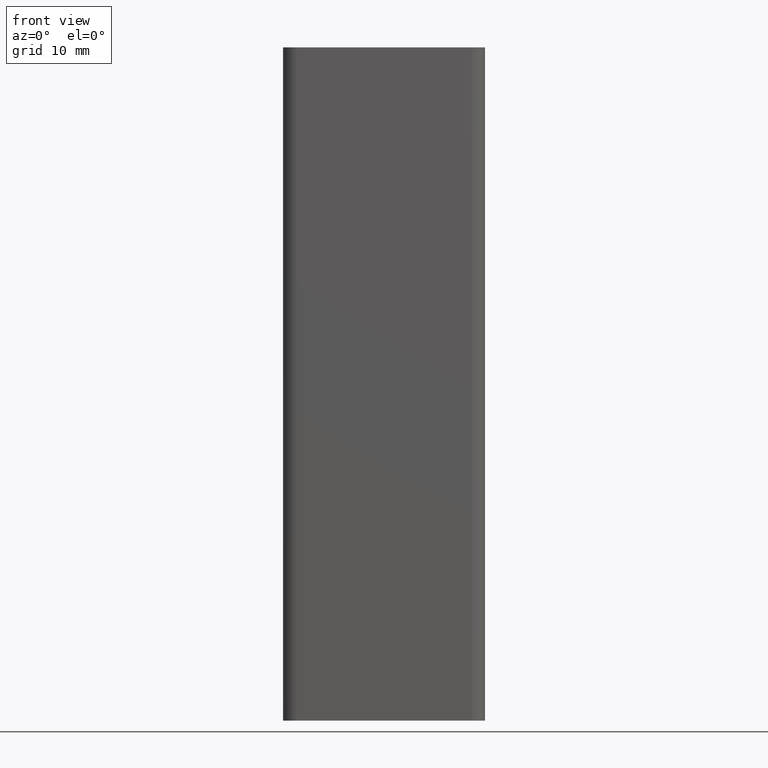
[diagram: clean part render]
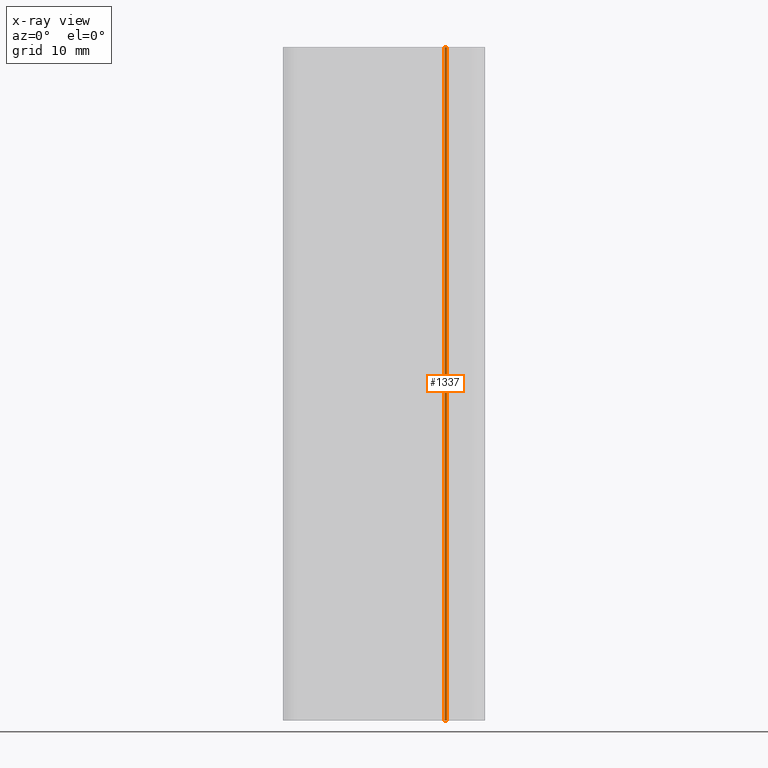
[diagram: x-ray — body ghosted, one internal face saturated and labeled with its STEP entity id]
A machine part, front view, then the same camera in x-ray: the body is ghosted and one INTERNAL B-rep face — a face not visible from any outside direction — is saturated and labeled: STEP entity #1337.
In plain terms, the highlighted cylindrical surface (edge-blend (fillet) strip) has radius 0.5 mm, axis along (0, 0, 1).
Its self-contained STEP definition (entity closure, byte-faithful):
#48=CIRCLE('',#1430,0.500000004051056);
#49=CIRCLE('',#1431,0.500000004051056);
#83=CYLINDRICAL_SURFACE('',#1429,0.500000004051056);
#120=FACE_OUTER_BOUND('',#188,.T.);
#188=EDGE_LOOP('',(#973,#974,#975,#976));
#295=LINE('',#2030,#446);
#296=LINE('',#2036,#447);
#446=VECTOR('',#1645,100.);
#447=VECTOR('',#1652,100.);
#594=VERTEX_POINT('',#2026);
#595=VERTEX_POINT('',#2028);
#596=VERTEX_POINT('',#2032);
#597=VERTEX_POINT('',#2034);
#751=EDGE_CURVE('',#595,#594,#295,.T.);
#752=EDGE_CURVE('',#594,#596,#48,.T.);
#753=EDGE_CURVE('',#597,#595,#49,.T.);
#754=EDGE_CURVE('',#597,#596,#296,.T.);
#973=ORIENTED_EDGE('',*,*,#752,.F.);
#974=ORIENTED_EDGE('',*,*,#751,.F.);
#975=ORIENTED_EDGE('',*,*,#753,.F.);
#976=ORIENTED_EDGE('',*,*,#754,.T.);
#1337=ADVANCED_FACE('',(#120),#83,.T.);
#1429=AXIS2_PLACEMENT_3D('',#2031,#1646,#1647);
#1430=AXIS2_PLACEMENT_3D('',#2033,#1648,#1649);
#1431=AXIS2_PLACEMENT_3D('',#2035,#1650,#1651);
#1645=DIRECTION('',(0.,0.,1.));
#1646=DIRECTION('center_axis',(0.,0.,1.));
#1647=DIRECTION('ref_axis',(0.707106782223408,0.707106780149687,0.));
#1648=DIRECTION('center_axis',(0.,0.,1.));
#1649=DIRECTION('ref_axis',(0.707106782223408,0.707106780149687,0.));
#1650=DIRECTION('center_axis',(0.,0.,-1.));
#1651=DIRECTION('ref_axis',(0.707106782223408,0.707106780149687,0.));
#1652=DIRECTION('',(0.,0.,1.));
#2026=CARTESIAN_POINT('',(9.0050252492345,-9.85355338483721,100.));
#2028=CARTESIAN_POINT('',(9.0050252492345,-9.85355338483721,0.));
#2030=CARTESIAN_POINT('',(9.0050252492345,-9.85355338483721,0.));
#2031=CARTESIAN_POINT('Origin',(9.35857864321084,-9.49999999189773,0.));
#2032=CARTESIAN_POINT('',(9.35857864321084,-9.99999999594894,100.));
#2033=CARTESIAN_POINT('Origin',(9.35857864321084,-9.49999999189773,100.));
#2034=CARTESIAN_POINT('',(9.35857864321084,-9.99999999594894,0.));
#2035=CARTESIAN_POINT('Origin',(9.35857864321084,-9.49999999189773,0.));
#2036=CARTESIAN_POINT('',(9.35857864321084,-9.99999999594894,0.));